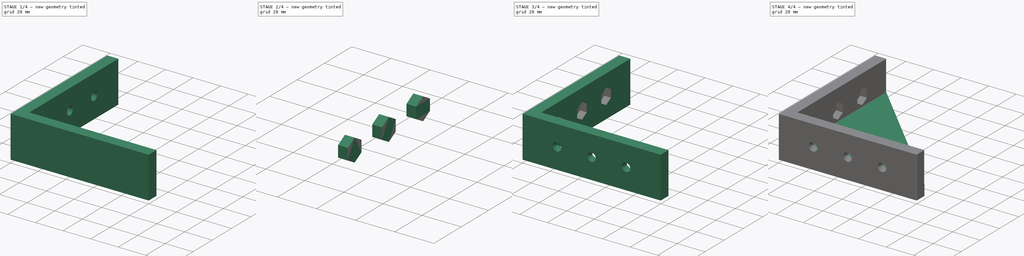
[diagram: build sequence overview — one tinted view per stage of 4, left to right]
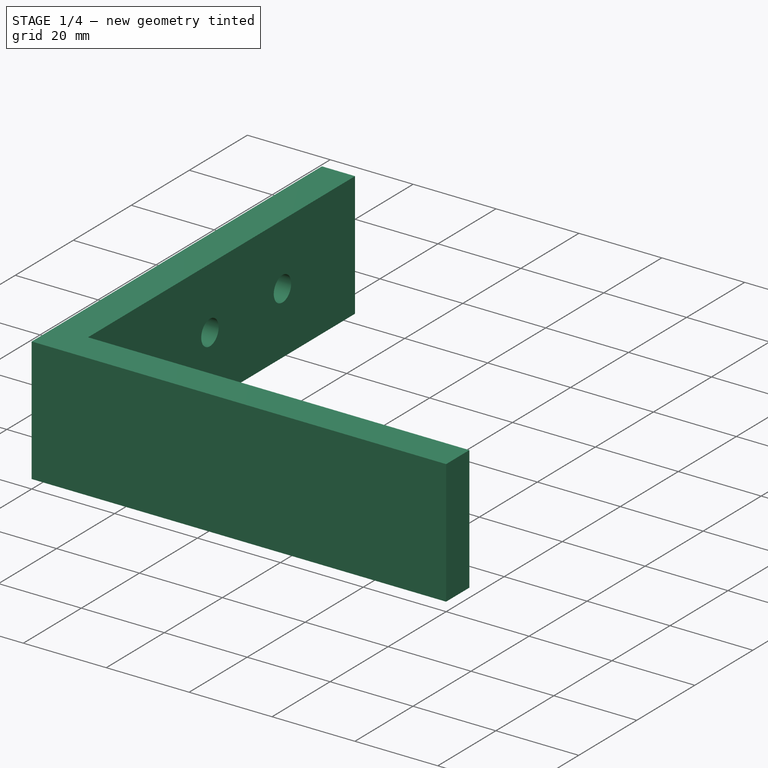
[diagram: stage 1 of 4 — iso view after this stage's code; geometry added in this stage tinted green]
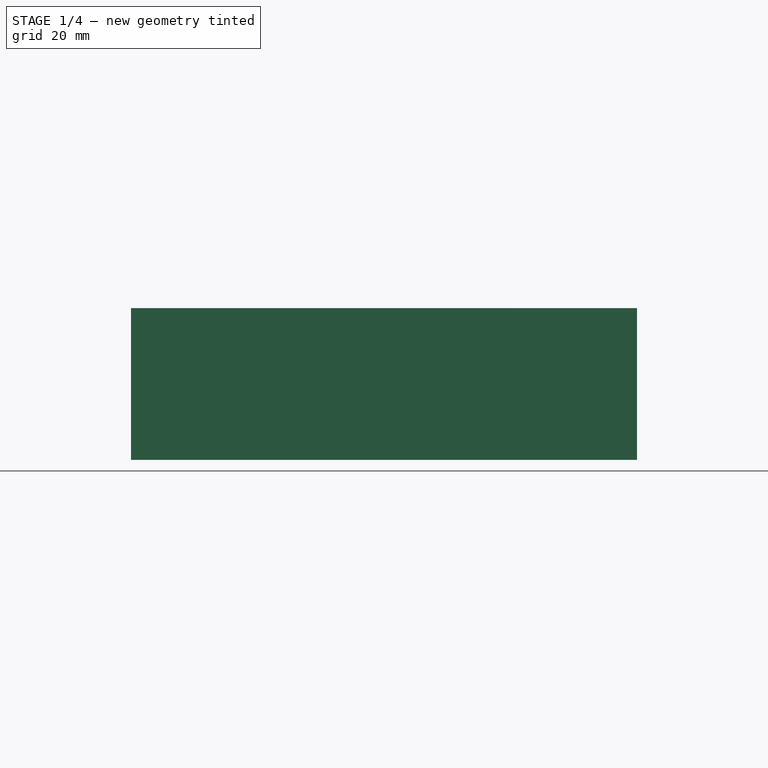
[diagram: stage 1 of 4 — front view after this stage's code; geometry added in this stage tinted green]
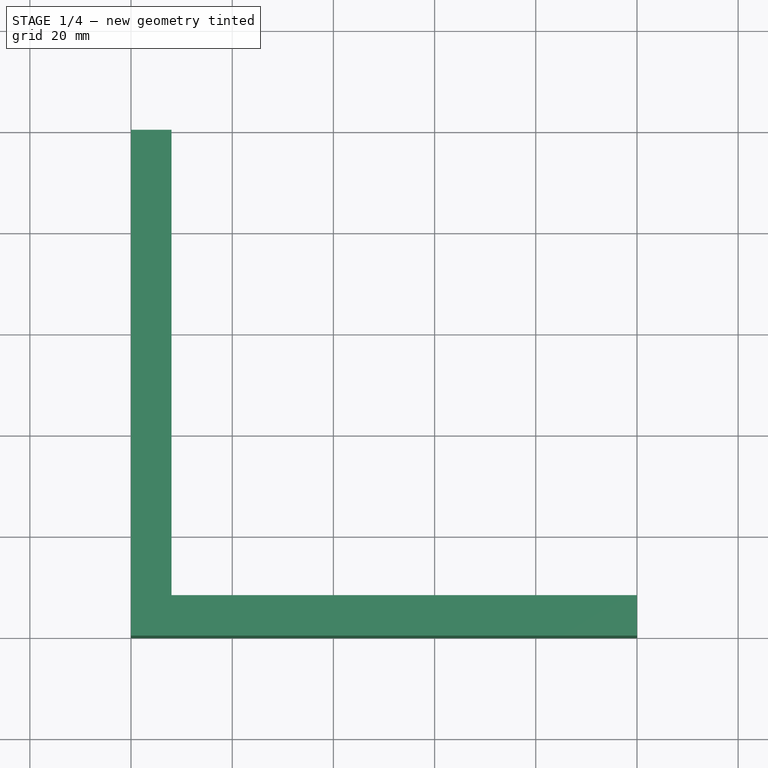
[diagram: stage 1 of 4 — top view after this stage's code; geometry added in this stage tinted green]
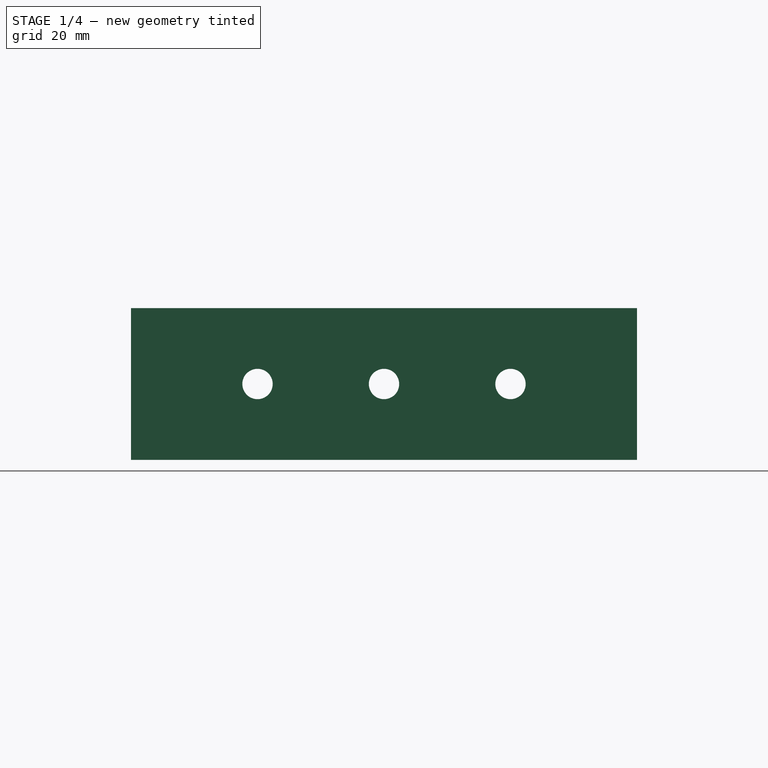
[diagram: stage 1 of 4 — right view after this stage's code; geometry added in this stage tinted green]
FCSTD DOCUMENT  (FreeCAD 0.21R33668 +7 (Git))
Label: L-Angle-M6
License: All rights reserved
LicenseURL: https://en.wikipedia.org/wiki/All_rights_reserved
objects: Sketcher::SketchObject×6, Part::Face×6, Part::Extrusion×6, Part::Cut×4, Part::MultiFuse×1, Part::Fillet×1
note: 24 computed .brp shape members not serialized (recipe doc carries the construction recipe); baked Part::Feature solids carry a one-line shape summary decoded from their .brp

FEATURE [Sketcher::SketchObject] Sketch
  FullyConstrained = true
  sketch-geometry (9):
    g0: LineSegment StartX=0 StartY=0 StartZ=0 EndX=0 EndY=100 EndZ=0
    g1: LineSegment StartX=0 StartY=100 StartZ=0 EndX=8 EndY=100 EndZ=0
    g2: LineSegment StartX=8 StartY=100 StartZ=0 EndX=8 EndY=8 EndZ=0
    g3: LineSegment StartX=8 StartY=8 StartZ=0 EndX=100 EndY=8 EndZ=0
    g4: LineSegment StartX=100 StartY=8 StartZ=0 EndX=100 EndY=0 EndZ=0
    g5: LineSegment StartX=100 StartY=0 StartZ=0 EndX=0 EndY=0 EndZ=0
    g6: GeomPoint X=8 Y=75 Z=0
    g7: GeomPoint X=8 Y=50 Z=0
    g8: GeomPoint X=8 Y=25 Z=0
  constraints (23):
    c: Vertical(g0)
    c: Coincident(g1,g0)
    c: Horizontal(g1)
    c: Coincident(g2,g1)
    c: Vertical(g2)
    c: Coincident(g3,g2)
    c: Horizontal(g3)
    c: Coincident(g4,g3)
    c: Vertical(g4)
    c: Coincident(g5,g4)
    c: Coincident(g5,g0)
    c: Horizontal(g5)
    c: Equal(g0,g5)
    c: Equal(g1,g4)
    c: Distance(g1) = 8
    c: Coincident(g0,g-1)
    c: PointOnObject(g6,g2)
    c: PointOnObject(g7,g2)
    c: PointOnObject(g8,g2)
    c: Distance(g1,g6) = 25
    c: Distance(g6,g7) = 25
    c: DistanceY(g0,g8) = 25
    c: DistanceY(g8,g7) = 25
FEATURE [Part::Face] Face
  FaceMakerClass = Part::FaceMakerBullseye
  Sources = -> [Sketch]
FEATURE [Part::Extrusion] Extrude
  Base = -> Face
  Dir = (0,0,1)
  DirMode = 2
  FaceMakerClass = Part::FaceMakerBullseye
  LengthFwd = 30
  LengthRev = 0
  Solid = false
  Symmetric = false
FEATURE [Sketcher::SketchObject] Sketch001
  ExternalGeometry = -> [Extrude]
  FullyConstrained = true
  MapMode = 5
  Placement = pos=(8,0,0) rot=(0.57735,0.57735,0.57735;2.0944rad)
  Support = -> [Extrude]
  sketch-geometry (3):
    g0: Circle CenterX=75 CenterY=15 CenterZ=0 NormalX=0 NormalY=0 NormalZ=1 AngleXU=0 Radius=3
    g1: Circle CenterX=50 CenterY=15 CenterZ=0 NormalX=0 NormalY=0 NormalZ=1 AngleXU=0 Radius=3
    g2: Circle CenterX=25 CenterY=15 CenterZ=0 NormalX=0 NormalY=0 NormalZ=1 AngleXU=0 Radius=3
  constraints (9):
    c: Diameter(g2) = 6
    c: Diameter(g1) = 6
    c: Diameter(g0) = 6
    c: Horizontal(g0,g1)
    c: Horizontal(g1,g2)
    c: DistanceY(g0,g-3) = 15
    c: DistanceX(g0,g-3) = 25
    c: DistanceX(g1,g0) = 25
    c: DistanceX(g2,g1) = 25
FEATURE [Part::Face] Face001
  FaceMakerClass = Part::FaceMakerBullseye
  Sources = -> [Sketch001]
FEATURE [Part::Extrusion] Extrude001
  Base = -> Face001
  Dir = (1,0,0)
  DirMode = 2
  FaceMakerClass = Part::FaceMakerBullseye
  LengthFwd = -10
  LengthRev = 0
  Solid = false
  Symmetric = false
FEATURE [Part::Cut] Cut
  Base = -> Extrude
  Tool = -> Extrude001
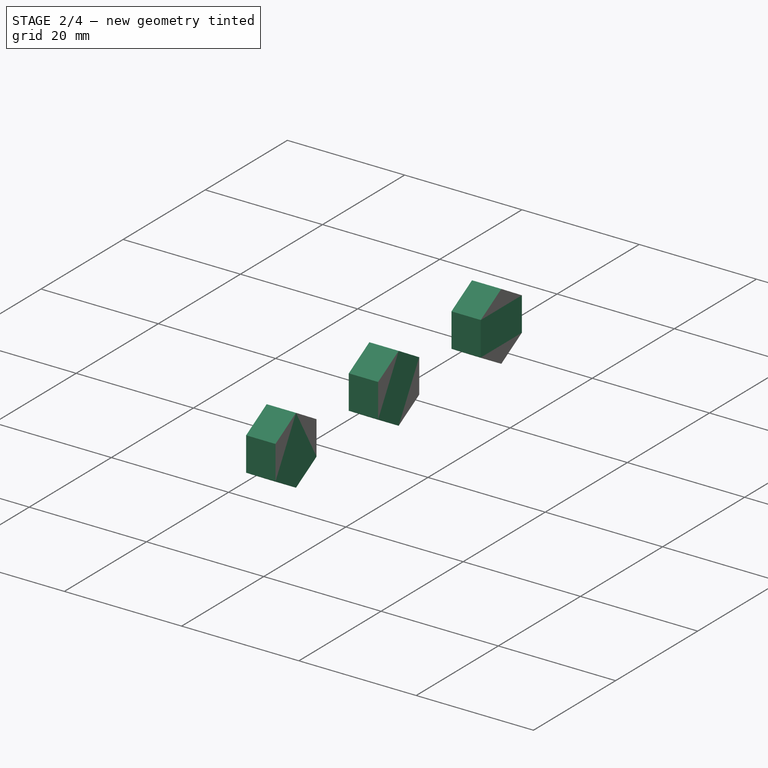
[diagram: stage 2 of 4 — iso view after this stage's code; geometry added in this stage tinted green]
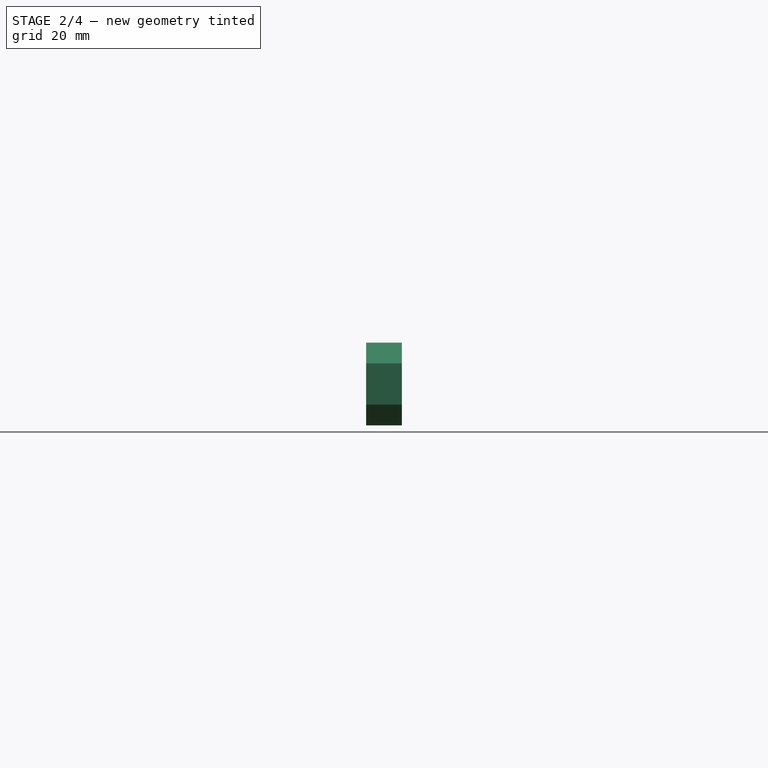
[diagram: stage 2 of 4 — front view after this stage's code; geometry added in this stage tinted green]
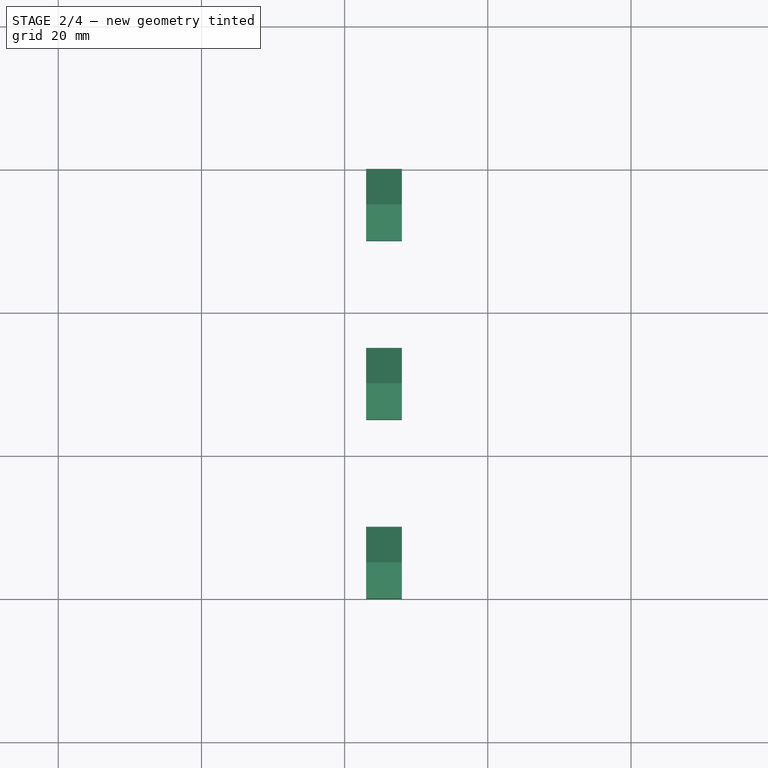
[diagram: stage 2 of 4 — top view after this stage's code; geometry added in this stage tinted green]
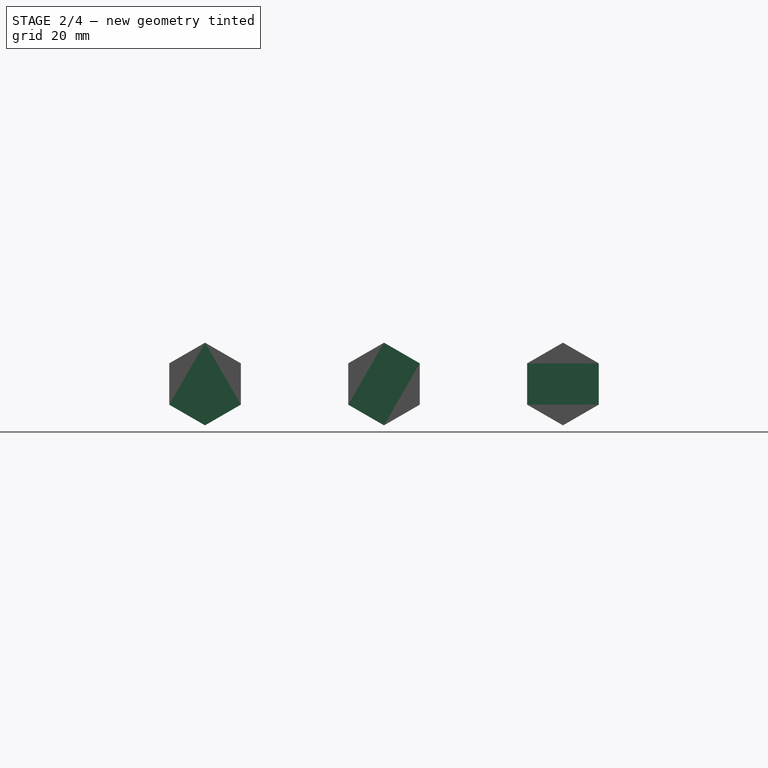
[diagram: stage 2 of 4 — right view after this stage's code; geometry added in this stage tinted green]
FEATURE [Sketcher::SketchObject] Sketch002
  ExternalGeometry = -> [Cut]
  FullyConstrained = true
  MapMode = 5
  Placement = pos=(0,8,0) rot=(0,0.707107,0.707107;3.14159rad)
  Support = -> [Cut]
  sketch-geometry (3):
    g0: Circle CenterX=-75 CenterY=15 CenterZ=0 NormalX=0 NormalY=0 NormalZ=1 AngleXU=0 Radius=3
    g1: Circle CenterX=-50 CenterY=15 CenterZ=0 NormalX=0 NormalY=0 NormalZ=1 AngleXU=0 Radius=3
    g2: Circle CenterX=-25 CenterY=15 CenterZ=0 NormalX=0 NormalY=0 NormalZ=1 AngleXU=0 Radius=3
  constraints (9):
    c: Equal(g0,g1)
    c: Equal(g0,g2)
    c: Diameter(g0) = 6
    c: Horizontal(g0,g1)
    c: Horizontal(g1,g2)
    c: DistanceY(g0,g-3) = 15
    c: DistanceX(g-3,g0) = 25
    c: DistanceX(g0,g1) = 25
    c: DistanceX(g1,g2) = 25
FEATURE [Part::Face] Face002
  FaceMakerClass = Part::FaceMakerBullseye
  Sources = -> [Sketch002]
FEATURE [Part::Extrusion] Extrude002
  Base = -> Face002
  Dir = (0,1,0)
  DirMode = 2
  FaceMakerClass = Part::FaceMakerBullseye
  LengthFwd = -10
  LengthRev = 0
  Solid = false
  Symmetric = false
FEATURE [Part::Cut] Cut001
  Base = -> Cut
  Tool = -> Extrude002
FEATURE [Sketcher::SketchObject] Sketch003
  ExternalGeometry = -> [Sketch001]
  FullyConstrained = true
  MapMode = 5
  Placement = pos=(8,0,0) rot=(0.57735,0.57735,0.57735;2.0944rad)
  Support = -> [Cut001]
  sketch-geometry (21):
    g0: LineSegment StartX=80 StartY=12.1132 StartZ=0 EndX=80 EndY=17.8868 EndZ=0
    g1: LineSegment StartX=80 StartY=17.8868 StartZ=0 EndX=75 EndY=20.7735 EndZ=0
    g2: LineSegment StartX=75 StartY=20.7735 StartZ=0 EndX=70 EndY=17.8868 EndZ=0
    g3: LineSegment StartX=70 StartY=17.8868 StartZ=0 EndX=70 EndY=12.1132 EndZ=0
    g4: LineSegment StartX=70 StartY=12.1132 StartZ=0 EndX=75 EndY=9.2265 EndZ=0
    g5: LineSegment StartX=75 StartY=9.2265 StartZ=0 EndX=80 EndY=12.1132 EndZ=0
    g6: Circle CenterX=75 CenterY=15 CenterZ=0 NormalX=0 NormalY=0 NormalZ=1 AngleXU=0 Radius=5.7735
    g7: LineSegment StartX=55 StartY=12.1132 StartZ=0 EndX=55 EndY=17.8868 EndZ=0
    g8: LineSegment StartX=55 StartY=17.8868 StartZ=0 EndX=50 EndY=20.7735 EndZ=0
    g9: LineSegment StartX=50 StartY=20.7735 StartZ=0 EndX=45 EndY=17.8868 EndZ=0
    g10: LineSegment StartX=45 StartY=17.8868 StartZ=0 EndX=45 EndY=12.1132 EndZ=0
    g11: LineSegment StartX=45 StartY=12.1132 StartZ=0 EndX=50 EndY=9.2265 EndZ=0
    g12: LineSegment StartX=50 StartY=9.2265 StartZ=0 EndX=55 EndY=12.1132 EndZ=0
    g13: Circle CenterX=50 CenterY=15 CenterZ=0 NormalX=0 NormalY=0 NormalZ=1 AngleXU=0 Radius=5.7735
    g14: LineSegment StartX=30 StartY=12.1132 StartZ=0 EndX=30 EndY=17.8868 EndZ=0
    g15: LineSegment StartX=30 StartY=17.8868 StartZ=0 EndX=25 EndY=20.7735 EndZ=0
    g16: LineSegment StartX=25 StartY=20.7735 StartZ=0 EndX=20 EndY=17.8868 EndZ=0
    g17: LineSegment StartX=20 StartY=17.8868 StartZ=0 EndX=20 EndY=12.1132 EndZ=0
    g18: LineSegment StartX=20 StartY=12.1132 StartZ=0 EndX=25 EndY=9.2265 EndZ=0
    g19: LineSegment StartX=25 StartY=9.2265 StartZ=0 EndX=30 EndY=12.1132 EndZ=0
    g20: Circle CenterX=25 CenterY=15 CenterZ=0 NormalX=0 NormalY=0 NormalZ=1 AngleXU=0 Radius=5.7735
  constraints (48):
    c: Coincident(g0,g1)
    c: Coincident(g1,g2)
    c: Coincident(g2,g3)
    c: Coincident(g3,g4)
    c: Coincident(g4,g5)
    c: Coincident(g5,g0)
    c: Equal(g0, g1-g5) x5
    c: PointOnObject(g0,g6)
    c: PointOnObject(g1,g6)
    c: PointOnObject(g2,g6)
    c: PointOnObject(g3,g6)
    c: PointOnObject(g4,g6)
    c: PointOnObject(g5,g6)
    c: Coincident(g6,g-3)
    c: Coincident(g7,g8)
    c: Coincident(g8,g9)
    c: Coincident(g9,g10)
    c: Coincident(g10,g11)
    c: Coincident(g11,g12)
    c: Coincident(g12,g7)
    c: Equal(g7, g8-g12) x5
    c: PointOnObject(g7,g13)
    c: PointOnObject(g8,g13)
    c: PointOnObject(g9,g13)
    c: PointOnObject(g10,g13)
    c: PointOnObject(g11,g13)
    c: PointOnObject(g12,g13)
    c: Coincident(g13,g-4)
    c: Coincident(g14,g15)
    c: Coincident(g15,g16)
    c: Coincident(g16,g17)
    c: Coincident(g17,g18)
    c: Coincident(g18,g19)
    c: Coincident(g19,g14)
    c: Equal(g14, g15-g19) x5
    c: PointOnObject(g14,g20)
    c: PointOnObject(g15,g20)
    c: PointOnObject(g16,g20)
    c: PointOnObject(g17,g20)
    c: PointOnObject(g18,g20)
    c: PointOnObject(g19,g20)
    c: Coincident(g20,g-5)
    c: Vertical(g14)
    c: Vertical(g7)
    c: Vertical(g0)
    c: DistanceX(g16,g14) = 10
    c: Equal(g0,g7)
    c: Equal(g7,g14)
FEATURE [Part::Face] Face003
  FaceMakerClass = Part::FaceMakerBullseye
  Sources = -> [Sketch003]
FEATURE [Part::Extrusion] Extrude003
  Base = -> Face003
  Dir = (1,0,0)
  DirMode = 2
  FaceMakerClass = Part::FaceMakerBullseye
  LengthFwd = -5
  LengthRev = 0
  Solid = false
  Symmetric = false
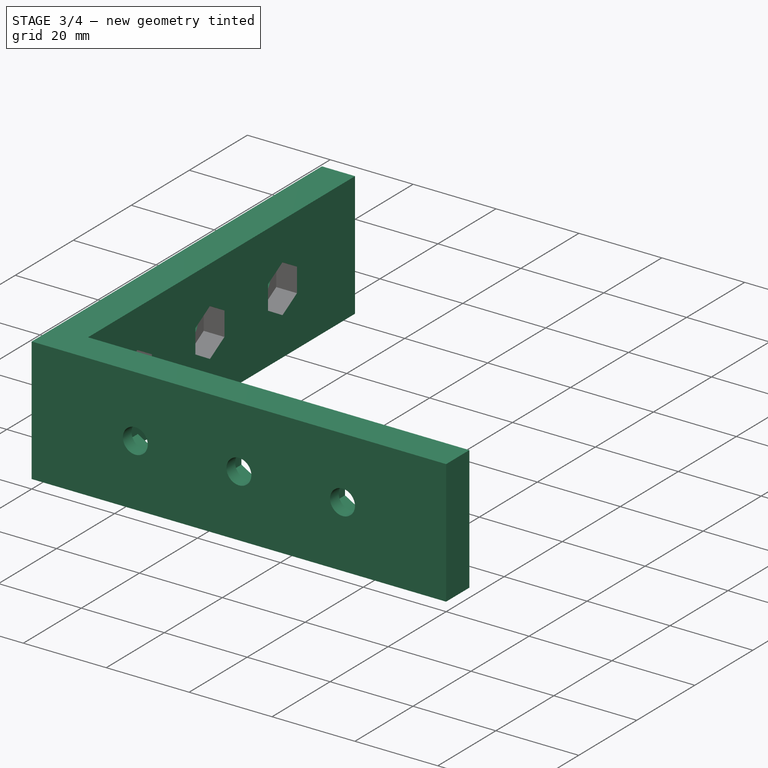
[diagram: stage 3 of 4 — iso view after this stage's code; geometry added in this stage tinted green]
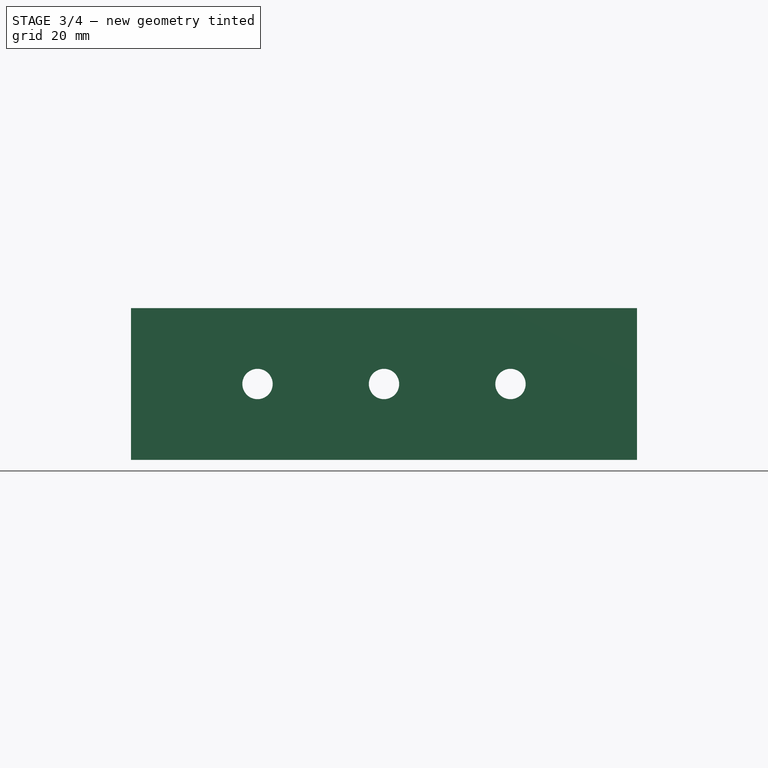
[diagram: stage 3 of 4 — front view after this stage's code; geometry added in this stage tinted green]
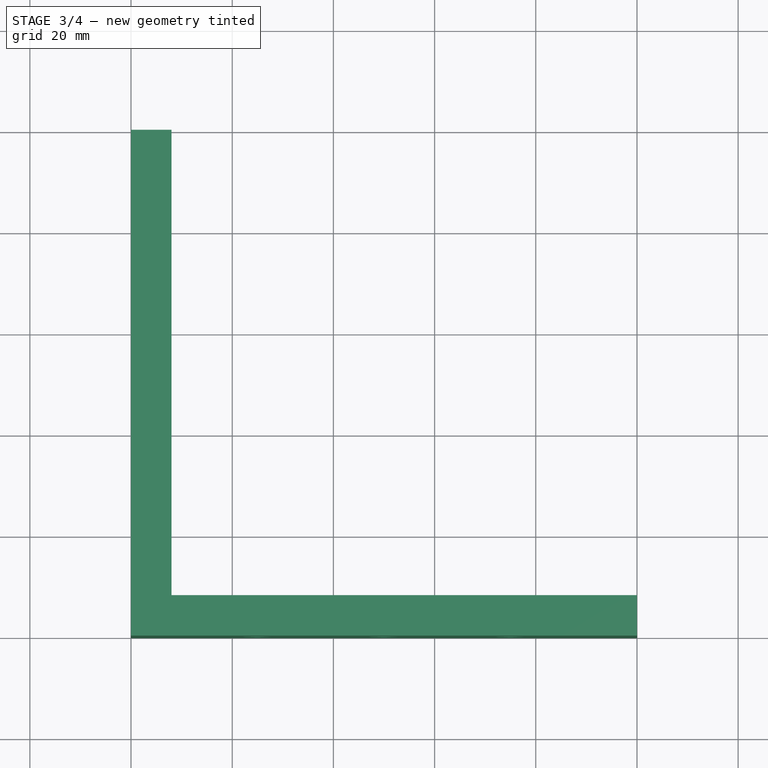
[diagram: stage 3 of 4 — top view after this stage's code; geometry added in this stage tinted green]
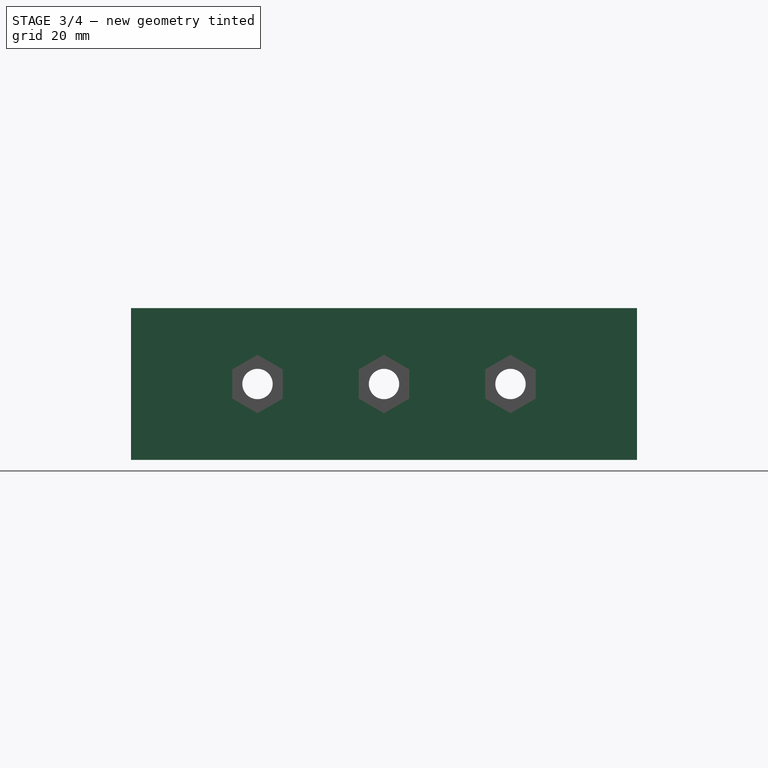
[diagram: stage 3 of 4 — right view after this stage's code; geometry added in this stage tinted green]
FEATURE [Part::Cut] Cut002
  Base = -> Cut001
  Tool = -> Extrude003
FEATURE [Sketcher::SketchObject] Sketch004
  ExternalGeometry = -> [Cut002]
  FullyConstrained = true
  MapMode = 5
  Placement = pos=(0,8,0) rot=(0,0.707107,0.707107;3.14159rad)
  Support = -> [Cut002]
  sketch-geometry (21):
    g0: LineSegment StartX=-70 StartY=12.1132 StartZ=0 EndX=-70 EndY=17.8868 EndZ=0
    g1: LineSegment StartX=-70 StartY=17.8868 StartZ=0 EndX=-75 EndY=20.7735 EndZ=0
    g2: LineSegment StartX=-75 StartY=20.7735 StartZ=0 EndX=-80 EndY=17.8868 EndZ=0
    g3: LineSegment StartX=-80 StartY=17.8868 StartZ=0 EndX=-80 EndY=12.1132 EndZ=0
    g4: LineSegment StartX=-80 StartY=12.1132 StartZ=0 EndX=-75 EndY=9.2265 EndZ=0
    g5: LineSegment StartX=-75 StartY=9.2265 StartZ=0 EndX=-70 EndY=12.1132 EndZ=0
    g6: Circle CenterX=-75 CenterY=15 CenterZ=0 NormalX=0 NormalY=0 NormalZ=1 AngleXU=0 Radius=5.7735
    g7: LineSegment StartX=-45 StartY=12.1132 StartZ=0 EndX=-45 EndY=17.8868 EndZ=0
    g8: LineSegment StartX=-45 StartY=17.8868 StartZ=0 EndX=-50 EndY=20.7735 EndZ=0
    g9: LineSegment StartX=-50 StartY=20.7735 StartZ=0 EndX=-55 EndY=17.8868 EndZ=0
    g10: LineSegment StartX=-55 StartY=17.8868 StartZ=0 EndX=-55 EndY=12.1132 EndZ=0
    g11: LineSegment StartX=-55 StartY=12.1132 StartZ=0 EndX=-50 EndY=9.2265 EndZ=0
    g12: LineSegment StartX=-50 StartY=9.2265 StartZ=0 EndX=-45 EndY=12.1132 EndZ=0
    g13: Circle CenterX=-50 CenterY=15 CenterZ=0 NormalX=0 NormalY=0 NormalZ=1 AngleXU=0 Radius=5.7735
    g14: LineSegment StartX=-20 StartY=12.1132 StartZ=0 EndX=-20 EndY=17.8868 EndZ=0
    g15: LineSegment StartX=-20 StartY=17.8868 StartZ=0 EndX=-25 EndY=20.7735 EndZ=0
    g16: LineSegment StartX=-25 StartY=20.7735 StartZ=0 EndX=-30 EndY=17.8868 EndZ=0
    g17: LineSegment StartX=-30 StartY=17.8868 StartZ=0 EndX=-30 EndY=12.1132 EndZ=0
    g18: LineSegment StartX=-30 StartY=12.1132 StartZ=0 EndX=-25 EndY=9.2265 EndZ=0
    g19: LineSegment StartX=-25 StartY=9.2265 StartZ=0 EndX=-20 EndY=12.1132 EndZ=0
    g20: Circle CenterX=-25 CenterY=15 CenterZ=0 NormalX=0 NormalY=0 NormalZ=1 AngleXU=0 Radius=5.7735
  constraints (48):
    c: Coincident(g0,g1)
    c: Coincident(g1,g2)
    c: Coincident(g2,g3)
    c: Coincident(g3,g4)
    c: Coincident(g4,g5)
    c: Coincident(g5,g0)
    c: Equal(g0, g1-g5) x5
    c: PointOnObject(g0,g6)
    c: PointOnObject(g1,g6)
    c: PointOnObject(g2,g6)
    c: PointOnObject(g3,g6)
    c: PointOnObject(g4,g6)
    c: PointOnObject(g5,g6)
    c: Coincident(g6,g-3)
    c: Coincident(g7,g8)
    c: Coincident(g8,g9)
    c: Coincident(g9,g10)
    c: Coincident(g10,g11)
    c: Coincident(g11,g12)
    c: Coincident(g12,g7)
    c: Equal(g7, g8-g12) x5
    c: PointOnObject(g7,g13)
    c: PointOnObject(g8,g13)
    c: PointOnObject(g9,g13)
    c: PointOnObject(g10,g13)
    c: PointOnObject(g11,g13)
    c: PointOnObject(g12,g13)
    c: Coincident(g13,g-4)
    c: Coincident(g14,g15)
    c: Coincident(g15,g16)
    c: Coincident(g16,g17)
    c: Coincident(g17,g18)
    c: Coincident(g18,g19)
    c: Coincident(g19,g14)
    c: Equal(g14, g15-g19) x5
    c: PointOnObject(g14,g20)
    c: PointOnObject(g15,g20)
    c: PointOnObject(g16,g20)
    c: PointOnObject(g17,g20)
    c: PointOnObject(g18,g20)
    c: PointOnObject(g19,g20)
    c: Coincident(g20,g-5)
    c: Vertical(g0)
    c: Vertical(g7)
    c: Vertical(g14)
    c: Distance(g2,g0) = 10
    c: Equal(g0,g7)
    c: Equal(g7,g14)
FEATURE [Part::Face] Face004
  FaceMakerClass = Part::FaceMakerBullseye
  Sources = -> [Sketch004]
FEATURE [Part::Extrusion] Extrude005
  Base = -> Face004
  Dir = (0,1,-2e-16)
  DirMode = 2
  FaceMakerClass = Part::FaceMakerBullseye
  LengthFwd = -5
  LengthRev = 0
  Solid = false
  Symmetric = false
FEATURE [Part::Cut] Cut003
  Base = -> Cut002
  Tool = -> Extrude005
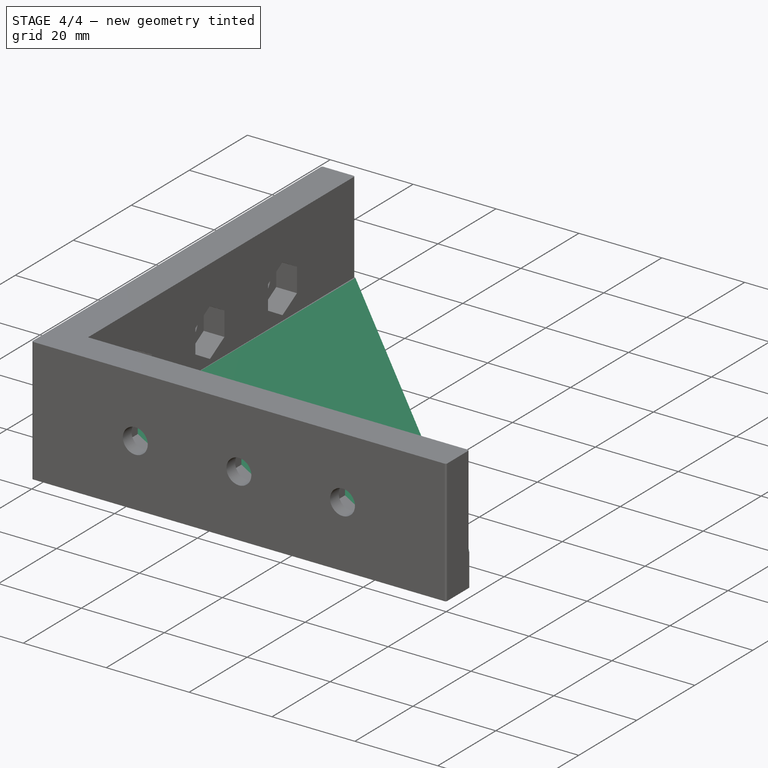
[diagram: stage 4 of 4 — iso view after this stage's code; geometry added in this stage tinted green]
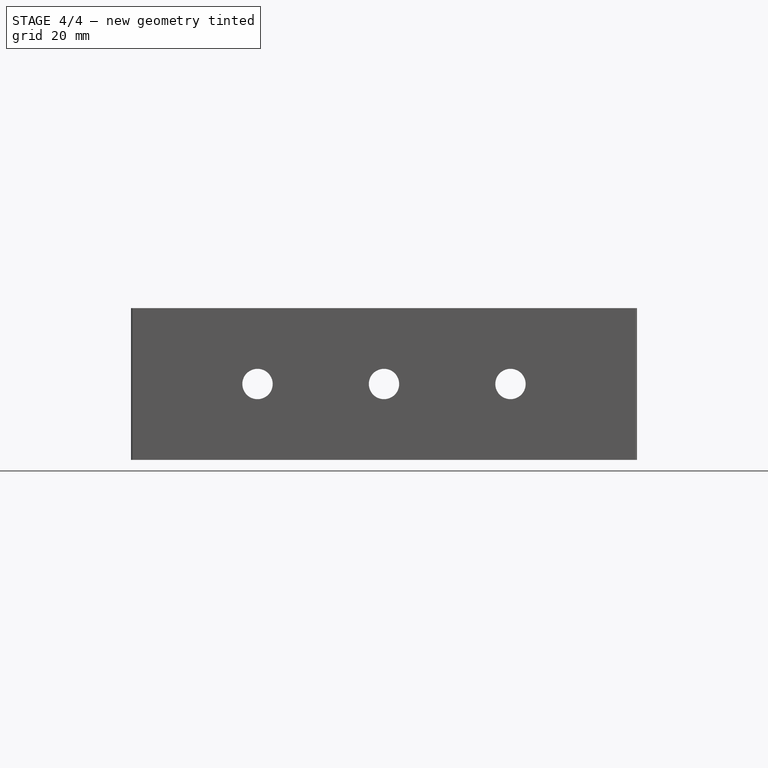
[diagram: stage 4 of 4 — front view after this stage's code; geometry added in this stage tinted green]
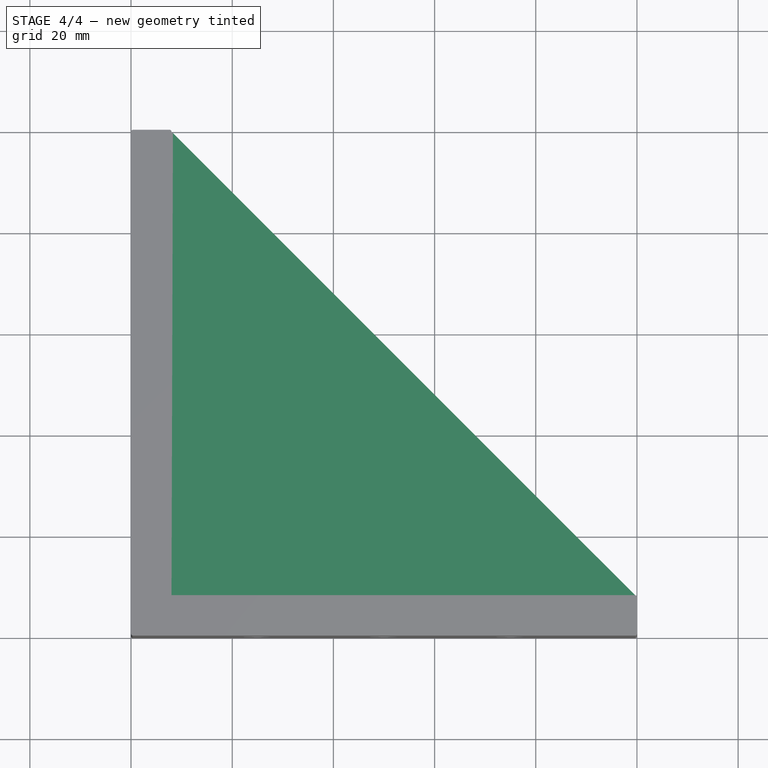
[diagram: stage 4 of 4 — top view after this stage's code; geometry added in this stage tinted green]
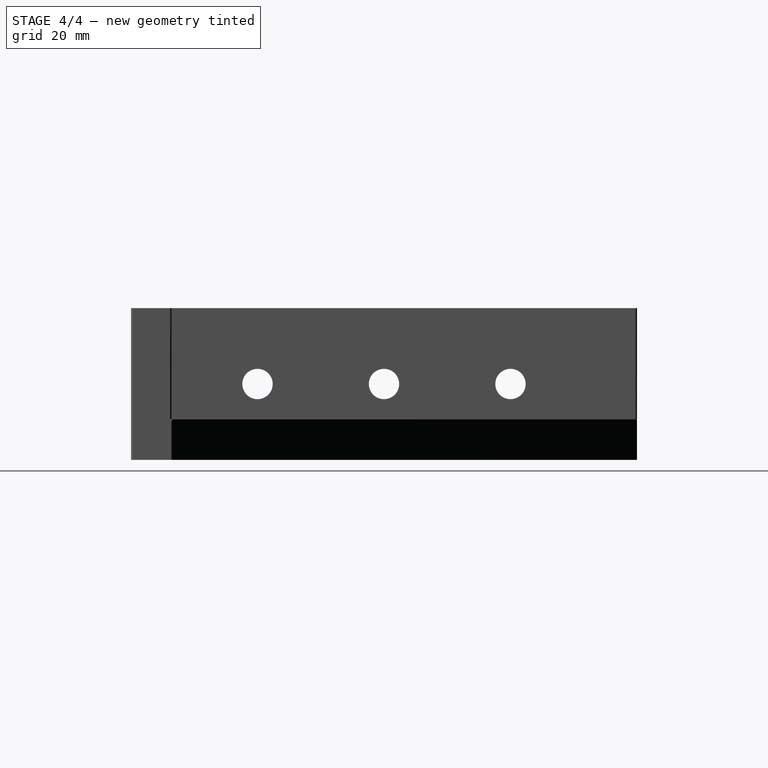
[diagram: stage 4 of 4 — right view after this stage's code; geometry added in this stage tinted green]
FEATURE [Sketcher::SketchObject] Sketch005
  ExternalGeometry = -> [Sketch]
  FullyConstrained = true
  MapMode = 5
  Placement = pos=(0,0,0) rot=(1,0,0;3.14159rad)
  Support = -> [Cut003]
  sketch-geometry (5):
    g0: LineSegment StartX=0 StartY=0 StartZ=0 EndX=100 EndY=0 EndZ=0
    g1: LineSegment StartX=100 StartY=0 StartZ=0 EndX=100 EndY=-8 EndZ=0
    g2: LineSegment StartX=100 StartY=-8 StartZ=0 EndX=8 EndY=-100 EndZ=0
    g3: LineSegment StartX=8 StartY=-100 StartZ=0 EndX=0 EndY=-100 EndZ=0
    g4: LineSegment StartX=0 StartY=-100 StartZ=0 EndX=0 EndY=0 EndZ=0
  constraints (10):
    c: Coincident(g0,g-1)
    c: Coincident(g0,g-3)
    c: Coincident(g1,g0)
    c: Coincident(g1,g-3)
    c: Coincident(g2,g1)
    c: Coincident(g2,g-4)
    c: Coincident(g3,g2)
    c: Coincident(g3,g-4)
    c: Coincident(g4,g3)
    c: Coincident(g4,g0)
FEATURE [Part::Face] Face005
  FaceMakerClass = Part::FaceMakerBullseye
  Sources = -> [Sketch005]
FEATURE [Part::Extrusion] Extrude006
  Base = -> Sketch005
  Dir = (0,0,-1)
  DirMode = 2
  FaceMakerClass = Part::FaceMakerBullseye
  LengthFwd = -8
  LengthRev = 0
  Solid = true
  Symmetric = false
FEATURE [Part::MultiFuse] Fusion
  Shapes = -> [Cut003,Extrude006]
FEATURE [Part::Fillet] Fillet
  Base = -> Fusion
  Edges = 10 edges r=0.4: [Edge2,Edge4,Edge10,Edge12,Edge14,Edge19,Edge22,Edge24,Edge30,Edge40]
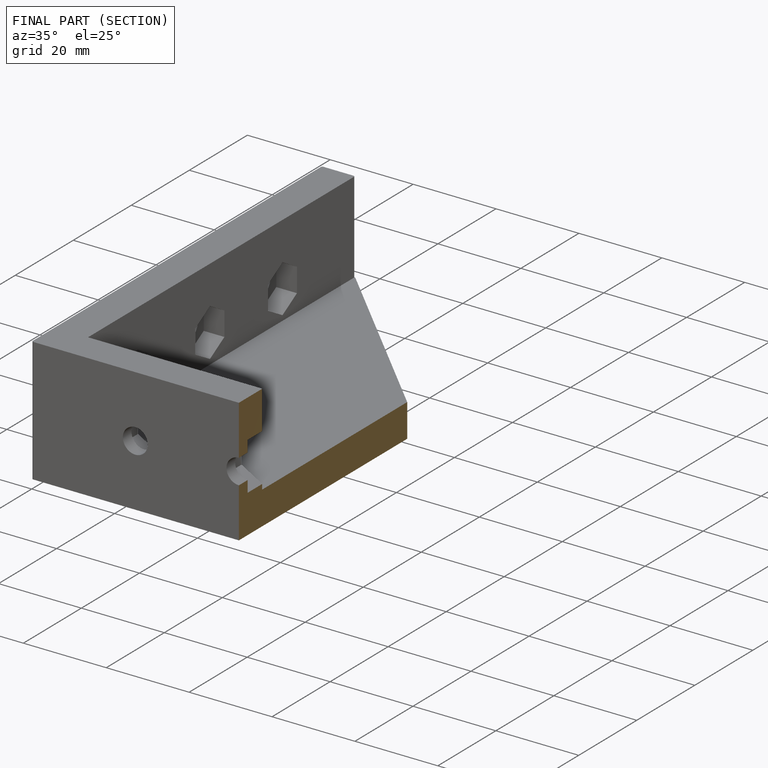
[diagram: finished part — half-section view (interior)]
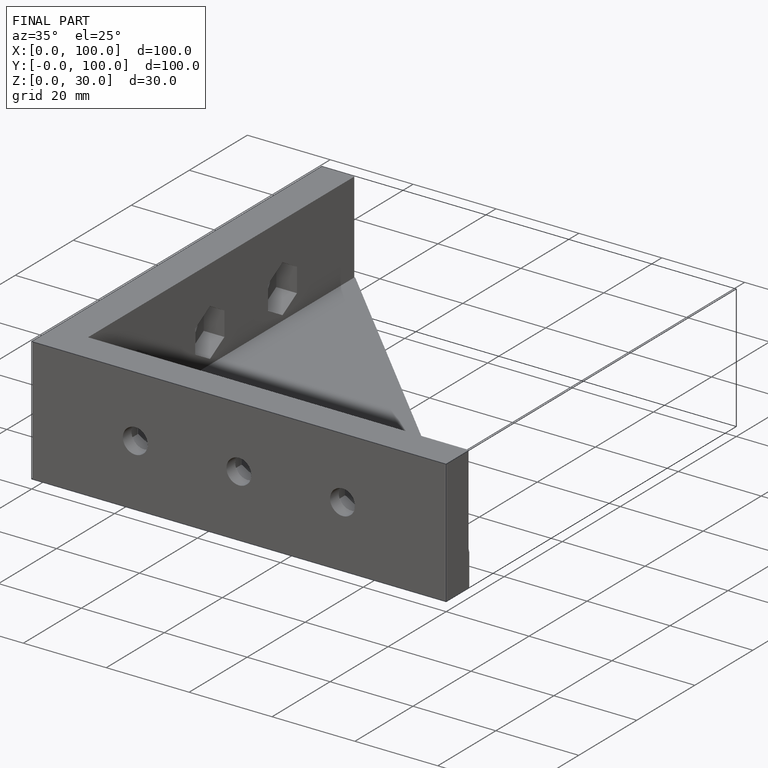
[diagram: finished part — iso view with bounding-box wireframe]
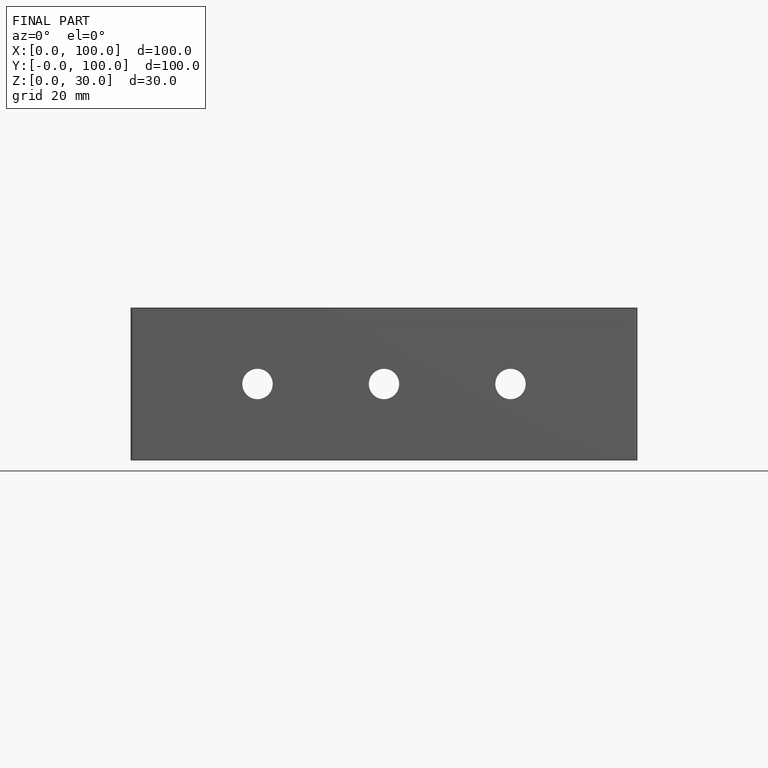
[diagram: finished part — front view with bounding-box wireframe]
